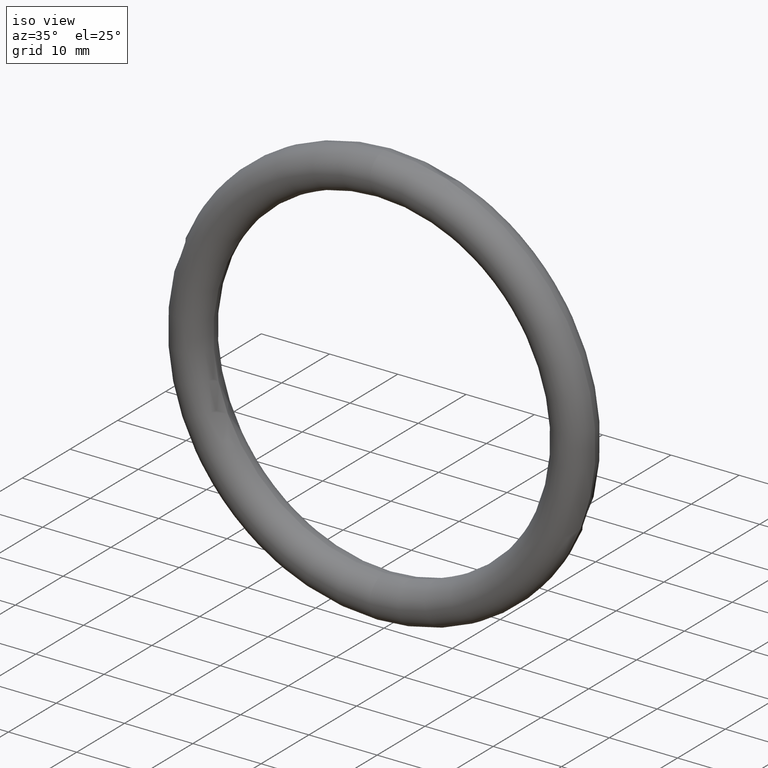
[diagram: clean part render]
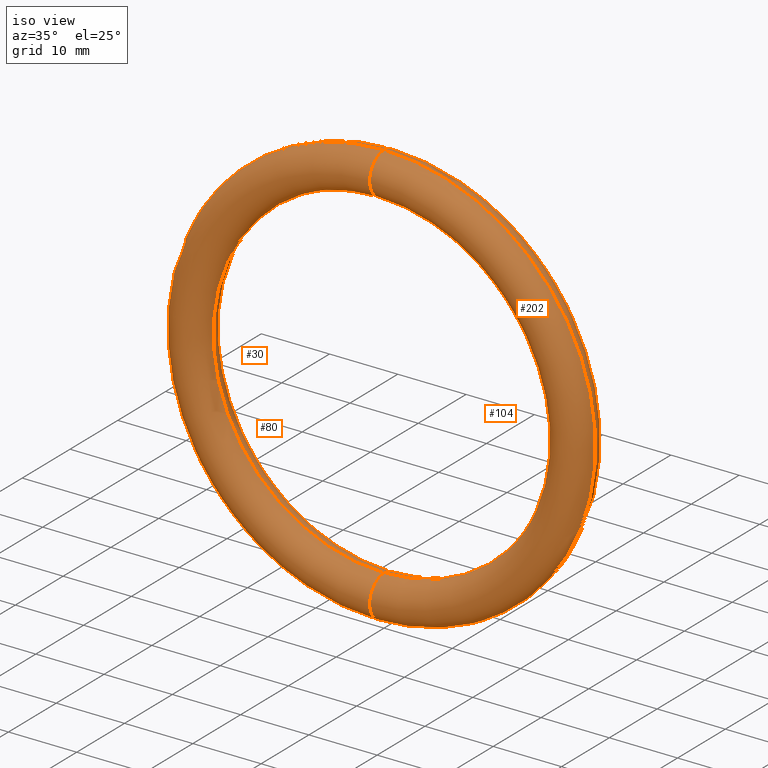
[diagram: same view with one multi-face feature highlighted, each face labeled with its STEP entity id]
A machine part, iso view. The highlighted faces form ONE feature: a constant-radius fillet chain: 4 tangent blend faces with common blend radius 3 mm. The faces share edges in the B-rep.
Their STEP definitions:
[1] entity #30 (Torus):
#8 = FACE_OUTER_BOUND ( 'NONE', #240, .T. ) ;
#17 = CIRCLE ( 'NONE', #34, 31.00000000000000000 ) ;
#18 = ORIENTED_EDGE ( 'NONE', *, *, #45, .F. ) ;
#27 = EDGE_CURVE ( 'NONE', #73, #147, #235, .T. ) ;
#30 = ADVANCED_FACE ( 'NONE', ( #8 ), #242, .T. ) ;
#34 = AXIS2_PLACEMENT_3D ( 'NONE', #173, #172, #237 ) ;
#37 = EDGE_CURVE ( 'NONE', #78, #147, #124, .T. ) ;
#45 = EDGE_CURVE ( 'NONE', #47, #73, #58, .T. ) ;
#47 = VERTEX_POINT ( 'NONE', #149 ) ;
#55 = AXIS2_PLACEMENT_3D ( 'NONE', #206, #208, #154 ) ;
#57 = AXIS2_PLACEMENT_3D ( 'NONE', #271, #192, #88 ) ;
#58 = CIRCLE ( 'NONE', #57, 2.999999999999999112 ) ;
#62 = CARTESIAN_POINT ( 'NONE',  ( 3.061616997868383437E-15, 0.000000000000000000, 25.00000000000000000 ) ) ;
#73 = VERTEX_POINT ( 'NONE', #62 ) ;
#78 = VERTEX_POINT ( 'NONE', #116 ) ;
#88 = DIRECTION ( 'NONE',  ( -1.224646799147352221E-16, 0.000000000000000000, -1.000000000000000000 ) ) ;
#110 = CARTESIAN_POINT ( 'NONE',  ( 0.000000000000000000, 0.000000000000000000, 0.000000000000000000 ) ) ;
#116 = CARTESIAN_POINT ( 'NONE',  ( 0.000000000000000000, 0.000000000000000000, -31.00000000000000000 ) ) ;
#119 = ORIENTED_EDGE ( 'NONE', *, *, #27, .F. ) ;
#124 = CIRCLE ( 'NONE', #55, 2.999999999999999112 ) ;
#131 = ORIENTED_EDGE ( 'NONE', *, *, #228, .T. ) ;
#147 = VERTEX_POINT ( 'NONE', #233 ) ;
#149 = CARTESIAN_POINT ( 'NONE',  ( 3.796405077356795115E-15, 0.000000000000000000, 31.00000000000000000 ) ) ;
#154 = DIRECTION ( 'NONE',  ( 0.000000000000000000, 0.000000000000000000, 1.000000000000000000 ) ) ;
#172 = DIRECTION ( 'NONE',  ( -0.000000000000000000, -1.000000000000000000, -0.000000000000000000 ) ) ;
#173 = CARTESIAN_POINT ( 'NONE',  ( 0.000000000000000000, 0.000000000000000000, 0.000000000000000000 ) ) ;
#192 = DIRECTION ( 'NONE',  ( 1.000000000000000000, 0.000000000000000000, -1.224646799147353207E-16 ) ) ;
#197 = ORIENTED_EDGE ( 'NONE', *, *, #37, .T. ) ;
#205 = DIRECTION ( 'NONE',  ( 0.000000000000000000, 0.000000000000000000, -1.000000000000000000 ) ) ;
#206 = CARTESIAN_POINT ( 'NONE',  ( 0.000000000000000000, 0.000000000000000000, -28.00000000000000000 ) ) ;
#208 = DIRECTION ( 'NONE',  ( -1.000000000000000000, 0.000000000000000000, 0.000000000000000000 ) ) ;
#221 = AXIS2_PLACEMENT_3D ( 'NONE', #266, #229, #205 ) ;
#228 = EDGE_CURVE ( 'NONE', #47, #78, #17, .T. ) ;
#229 = DIRECTION ( 'NONE',  ( -0.000000000000000000, -1.000000000000000000, -0.000000000000000000 ) ) ;
#233 = CARTESIAN_POINT ( 'NONE',  ( 0.000000000000000000, 0.000000000000000000, -25.00000000000000000 ) ) ;
#235 = CIRCLE ( 'NONE', #221, 25.00000000000000000 ) ;
#237 = DIRECTION ( 'NONE',  ( 0.000000000000000000, 0.000000000000000000, -1.000000000000000000 ) ) ;
#239 = AXIS2_PLACEMENT_3D ( 'NONE', #110, #270, #247 ) ;
#240 = EDGE_LOOP ( 'NONE', ( #18, #131, #197, #119 ) ) ;
#242 = TOROIDAL_SURFACE ( 'NONE', #239, 28.00000000000000000, 2.999999999999997335 ) ;
#247 = DIRECTION ( 'NONE',  ( 0.000000000000000000, 0.000000000000000000, -1.000000000000000000 ) ) ;
#266 = CARTESIAN_POINT ( 'NONE',  ( 0.000000000000000000, 3.673940397442056417E-16, 0.000000000000000000 ) ) ;
#270 = DIRECTION ( 'NONE',  ( -0.000000000000000000, -1.000000000000000000, -0.000000000000000000 ) ) ;
#271 = CARTESIAN_POINT ( 'NONE',  ( 3.429011037612589276E-15, 0.000000000000000000, 28.00000000000000000 ) ) ;
[2] entity #80 (Torus):
#3 = DIRECTION ( 'NONE',  ( 1.000000000000000000, 0.000000000000000000, -1.224646799147353207E-16 ) ) ;
#12 = ORIENTED_EDGE ( 'NONE', *, *, #27, .T. ) ;
#17 = CIRCLE ( 'NONE', #34, 31.00000000000000000 ) ;
#21 = DIRECTION ( 'NONE',  ( -1.224646799147352221E-16, 0.000000000000000000, -1.000000000000000000 ) ) ;
#27 = EDGE_CURVE ( 'NONE', #73, #147, #235, .T. ) ;
#34 = AXIS2_PLACEMENT_3D ( 'NONE', #173, #172, #237 ) ;
#42 = DIRECTION ( 'NONE',  ( 0.000000000000000000, 0.000000000000000000, 1.000000000000000000 ) ) ;
#47 = VERTEX_POINT ( 'NONE', #149 ) ;
#62 = CARTESIAN_POINT ( 'NONE',  ( 3.061616997868383437E-15, 0.000000000000000000, 25.00000000000000000 ) ) ;
#68 = ORIENTED_EDGE ( 'NONE', *, *, #265, .F. ) ;
#70 = AXIS2_PLACEMENT_3D ( 'NONE', #238, #3, #21 ) ;
#73 = VERTEX_POINT ( 'NONE', #62 ) ;
#78 = VERTEX_POINT ( 'NONE', #116 ) ;
#80 = ADVANCED_FACE ( 'NONE', ( #224 ), #219, .T. ) ;
#86 = AXIS2_PLACEMENT_3D ( 'NONE', #256, #210, #87 ) ;
#87 = DIRECTION ( 'NONE',  ( 0.000000000000000000, 0.000000000000000000, -1.000000000000000000 ) ) ;
#116 = CARTESIAN_POINT ( 'NONE',  ( 0.000000000000000000, 0.000000000000000000, -31.00000000000000000 ) ) ;
#134 = ORIENTED_EDGE ( 'NONE', *, *, #212, .T. ) ;
#142 = AXIS2_PLACEMENT_3D ( 'NONE', #170, #190, #42 ) ;
#147 = VERTEX_POINT ( 'NONE', #233 ) ;
#149 = CARTESIAN_POINT ( 'NONE',  ( 3.796405077356795115E-15, 0.000000000000000000, 31.00000000000000000 ) ) ;
#151 = ORIENTED_EDGE ( 'NONE', *, *, #228, .F. ) ;
#167 = EDGE_LOOP ( 'NONE', ( #151, #68, #12, #134 ) ) ;
#170 = CARTESIAN_POINT ( 'NONE',  ( 0.000000000000000000, 0.000000000000000000, -28.00000000000000000 ) ) ;
#172 = DIRECTION ( 'NONE',  ( -0.000000000000000000, -1.000000000000000000, -0.000000000000000000 ) ) ;
#173 = CARTESIAN_POINT ( 'NONE',  ( 0.000000000000000000, 0.000000000000000000, 0.000000000000000000 ) ) ;
#174 = CIRCLE ( 'NONE', #70, 2.999999999999999112 ) ;
#190 = DIRECTION ( 'NONE',  ( -1.000000000000000000, 0.000000000000000000, 0.000000000000000000 ) ) ;
#205 = DIRECTION ( 'NONE',  ( 0.000000000000000000, 0.000000000000000000, -1.000000000000000000 ) ) ;
#210 = DIRECTION ( 'NONE',  ( -0.000000000000000000, -1.000000000000000000, -0.000000000000000000 ) ) ;
#212 = EDGE_CURVE ( 'NONE', #147, #78, #231, .T. ) ;
#219 = TOROIDAL_SURFACE ( 'NONE', #86, 28.00000000000000000, 2.999999999999997335 ) ;
#221 = AXIS2_PLACEMENT_3D ( 'NONE', #266, #229, #205 ) ;
#224 = FACE_OUTER_BOUND ( 'NONE', #167, .T. ) ;
#228 = EDGE_CURVE ( 'NONE', #47, #78, #17, .T. ) ;
#229 = DIRECTION ( 'NONE',  ( -0.000000000000000000, -1.000000000000000000, -0.000000000000000000 ) ) ;
#231 = CIRCLE ( 'NONE', #142, 2.999999999999999112 ) ;
#233 = CARTESIAN_POINT ( 'NONE',  ( 0.000000000000000000, 0.000000000000000000, -25.00000000000000000 ) ) ;
#235 = CIRCLE ( 'NONE', #221, 25.00000000000000000 ) ;
#237 = DIRECTION ( 'NONE',  ( 0.000000000000000000, 0.000000000000000000, -1.000000000000000000 ) ) ;
#238 = CARTESIAN_POINT ( 'NONE',  ( 3.429011037612589276E-15, 0.000000000000000000, 28.00000000000000000 ) ) ;
#256 = CARTESIAN_POINT ( 'NONE',  ( 0.000000000000000000, 0.000000000000000000, 0.000000000000000000 ) ) ;
#265 = EDGE_CURVE ( 'NONE', #73, #47, #174, .T. ) ;
#266 = CARTESIAN_POINT ( 'NONE',  ( 0.000000000000000000, 3.673940397442056417E-16, 0.000000000000000000 ) ) ;
[3] entity #202 (Torus):
#3 = DIRECTION ( 'NONE',  ( 1.000000000000000000, 0.000000000000000000, -1.224646799147353207E-16 ) ) ;
#10 = EDGE_CURVE ( 'NONE', #78, #47, #193, .T. ) ;
#21 = DIRECTION ( 'NONE',  ( -1.224646799147352221E-16, 0.000000000000000000, -1.000000000000000000 ) ) ;
#35 = FACE_OUTER_BOUND ( 'NONE', #94, .T. ) ;
#40 = EDGE_CURVE ( 'NONE', #147, #73, #63, .T. ) ;
#42 = DIRECTION ( 'NONE',  ( 0.000000000000000000, 0.000000000000000000, 1.000000000000000000 ) ) ;
#47 = VERTEX_POINT ( 'NONE', #149 ) ;
#50 = AXIS2_PLACEMENT_3D ( 'NONE', #252, #64, #69 ) ;
#54 = ORIENTED_EDGE ( 'NONE', *, *, #40, .T. ) ;
#59 = CARTESIAN_POINT ( 'NONE',  ( 0.000000000000000000, 0.000000000000000000, 0.000000000000000000 ) ) ;
#61 = DIRECTION ( 'NONE',  ( -0.000000000000000000, -1.000000000000000000, -0.000000000000000000 ) ) ;
#62 = CARTESIAN_POINT ( 'NONE',  ( 3.061616997868383437E-15, 0.000000000000000000, 25.00000000000000000 ) ) ;
#63 = CIRCLE ( 'NONE', #106, 25.00000000000000000 ) ;
#64 = DIRECTION ( 'NONE',  ( -0.000000000000000000, -1.000000000000000000, -0.000000000000000000 ) ) ;
#65 = DIRECTION ( 'NONE',  ( 0.000000000000000000, 0.000000000000000000, -1.000000000000000000 ) ) ;
#69 = DIRECTION ( 'NONE',  ( 0.000000000000000000, 0.000000000000000000, -1.000000000000000000 ) ) ;
#70 = AXIS2_PLACEMENT_3D ( 'NONE', #238, #3, #21 ) ;
#71 = CARTESIAN_POINT ( 'NONE',  ( 0.000000000000000000, 3.673940397442056417E-16, 0.000000000000000000 ) ) ;
#73 = VERTEX_POINT ( 'NONE', #62 ) ;
#78 = VERTEX_POINT ( 'NONE', #116 ) ;
#91 = AXIS2_PLACEMENT_3D ( 'NONE', #59, #61, #187 ) ;
#94 = EDGE_LOOP ( 'NONE', ( #268, #126, #54, #137 ) ) ;
#106 = AXIS2_PLACEMENT_3D ( 'NONE', #71, #253, #65 ) ;
#116 = CARTESIAN_POINT ( 'NONE',  ( 0.000000000000000000, 0.000000000000000000, -31.00000000000000000 ) ) ;
#126 = ORIENTED_EDGE ( 'NONE', *, *, #212, .F. ) ;
#137 = ORIENTED_EDGE ( 'NONE', *, *, #265, .T. ) ;
#142 = AXIS2_PLACEMENT_3D ( 'NONE', #170, #190, #42 ) ;
#147 = VERTEX_POINT ( 'NONE', #233 ) ;
#149 = CARTESIAN_POINT ( 'NONE',  ( 3.796405077356795115E-15, 0.000000000000000000, 31.00000000000000000 ) ) ;
#170 = CARTESIAN_POINT ( 'NONE',  ( 0.000000000000000000, 0.000000000000000000, -28.00000000000000000 ) ) ;
#174 = CIRCLE ( 'NONE', #70, 2.999999999999999112 ) ;
#187 = DIRECTION ( 'NONE',  ( 0.000000000000000000, 0.000000000000000000, -1.000000000000000000 ) ) ;
#190 = DIRECTION ( 'NONE',  ( -1.000000000000000000, 0.000000000000000000, 0.000000000000000000 ) ) ;
#193 = CIRCLE ( 'NONE', #91, 31.00000000000000000 ) ;
#202 = ADVANCED_FACE ( 'NONE', ( #35 ), #227, .T. ) ;
#212 = EDGE_CURVE ( 'NONE', #147, #78, #231, .T. ) ;
#227 = TOROIDAL_SURFACE ( 'NONE', #50, 28.00000000000000000, 2.999999999999997335 ) ;
#231 = CIRCLE ( 'NONE', #142, 2.999999999999999112 ) ;
#233 = CARTESIAN_POINT ( 'NONE',  ( 0.000000000000000000, 0.000000000000000000, -25.00000000000000000 ) ) ;
#238 = CARTESIAN_POINT ( 'NONE',  ( 3.429011037612589276E-15, 0.000000000000000000, 28.00000000000000000 ) ) ;
#252 = CARTESIAN_POINT ( 'NONE',  ( 0.000000000000000000, 0.000000000000000000, 0.000000000000000000 ) ) ;
#253 = DIRECTION ( 'NONE',  ( -0.000000000000000000, -1.000000000000000000, -0.000000000000000000 ) ) ;
#265 = EDGE_CURVE ( 'NONE', #73, #47, #174, .T. ) ;
#268 = ORIENTED_EDGE ( 'NONE', *, *, #10, .F. ) ;
[4] entity #104 (Torus):
#10 = EDGE_CURVE ( 'NONE', #78, #47, #193, .T. ) ;
#37 = EDGE_CURVE ( 'NONE', #78, #147, #124, .T. ) ;
#38 = ORIENTED_EDGE ( 'NONE', *, *, #40, .F. ) ;
#40 = EDGE_CURVE ( 'NONE', #147, #73, #63, .T. ) ;
#45 = EDGE_CURVE ( 'NONE', #47, #73, #58, .T. ) ;
#47 = VERTEX_POINT ( 'NONE', #149 ) ;
#55 = AXIS2_PLACEMENT_3D ( 'NONE', #206, #208, #154 ) ;
#57 = AXIS2_PLACEMENT_3D ( 'NONE', #271, #192, #88 ) ;
#58 = CIRCLE ( 'NONE', #57, 2.999999999999999112 ) ;
#59 = CARTESIAN_POINT ( 'NONE',  ( 0.000000000000000000, 0.000000000000000000, 0.000000000000000000 ) ) ;
#61 = DIRECTION ( 'NONE',  ( -0.000000000000000000, -1.000000000000000000, -0.000000000000000000 ) ) ;
#62 = CARTESIAN_POINT ( 'NONE',  ( 3.061616997868383437E-15, 0.000000000000000000, 25.00000000000000000 ) ) ;
#63 = CIRCLE ( 'NONE', #106, 25.00000000000000000 ) ;
#65 = DIRECTION ( 'NONE',  ( 0.000000000000000000, 0.000000000000000000, -1.000000000000000000 ) ) ;
#71 = CARTESIAN_POINT ( 'NONE',  ( 0.000000000000000000, 3.673940397442056417E-16, 0.000000000000000000 ) ) ;
#73 = VERTEX_POINT ( 'NONE', #62 ) ;
#77 = AXIS2_PLACEMENT_3D ( 'NONE', #85, #188, #211 ) ;
#78 = VERTEX_POINT ( 'NONE', #116 ) ;
#85 = CARTESIAN_POINT ( 'NONE',  ( 0.000000000000000000, 0.000000000000000000, 0.000000000000000000 ) ) ;
#88 = DIRECTION ( 'NONE',  ( -1.224646799147352221E-16, 0.000000000000000000, -1.000000000000000000 ) ) ;
#91 = AXIS2_PLACEMENT_3D ( 'NONE', #59, #61, #187 ) ;
#104 = ADVANCED_FACE ( 'NONE', ( #144 ), #186, .T. ) ;
#106 = AXIS2_PLACEMENT_3D ( 'NONE', #71, #253, #65 ) ;
#116 = CARTESIAN_POINT ( 'NONE',  ( 0.000000000000000000, 0.000000000000000000, -31.00000000000000000 ) ) ;
#124 = CIRCLE ( 'NONE', #55, 2.999999999999999112 ) ;
#144 = FACE_OUTER_BOUND ( 'NONE', #216, .T. ) ;
#147 = VERTEX_POINT ( 'NONE', #233 ) ;
#149 = CARTESIAN_POINT ( 'NONE',  ( 3.796405077356795115E-15, 0.000000000000000000, 31.00000000000000000 ) ) ;
#154 = DIRECTION ( 'NONE',  ( 0.000000000000000000, 0.000000000000000000, 1.000000000000000000 ) ) ;
#168 = ORIENTED_EDGE ( 'NONE', *, *, #37, .F. ) ;
#181 = ORIENTED_EDGE ( 'NONE', *, *, #10, .T. ) ;
#186 = TOROIDAL_SURFACE ( 'NONE', #77, 28.00000000000000000, 2.999999999999997335 ) ;
#187 = DIRECTION ( 'NONE',  ( 0.000000000000000000, 0.000000000000000000, -1.000000000000000000 ) ) ;
#188 = DIRECTION ( 'NONE',  ( -0.000000000000000000, -1.000000000000000000, -0.000000000000000000 ) ) ;
#192 = DIRECTION ( 'NONE',  ( 1.000000000000000000, 0.000000000000000000, -1.224646799147353207E-16 ) ) ;
#193 = CIRCLE ( 'NONE', #91, 31.00000000000000000 ) ;
#206 = CARTESIAN_POINT ( 'NONE',  ( 0.000000000000000000, 0.000000000000000000, -28.00000000000000000 ) ) ;
#208 = DIRECTION ( 'NONE',  ( -1.000000000000000000, 0.000000000000000000, 0.000000000000000000 ) ) ;
#211 = DIRECTION ( 'NONE',  ( 0.000000000000000000, 0.000000000000000000, -1.000000000000000000 ) ) ;
#216 = EDGE_LOOP ( 'NONE', ( #168, #181, #251, #38 ) ) ;
#233 = CARTESIAN_POINT ( 'NONE',  ( 0.000000000000000000, 0.000000000000000000, -25.00000000000000000 ) ) ;
#251 = ORIENTED_EDGE ( 'NONE', *, *, #45, .T. ) ;
#253 = DIRECTION ( 'NONE',  ( -0.000000000000000000, -1.000000000000000000, -0.000000000000000000 ) ) ;
#271 = CARTESIAN_POINT ( 'NONE',  ( 3.429011037612589276E-15, 0.000000000000000000, 28.00000000000000000 ) ) ;